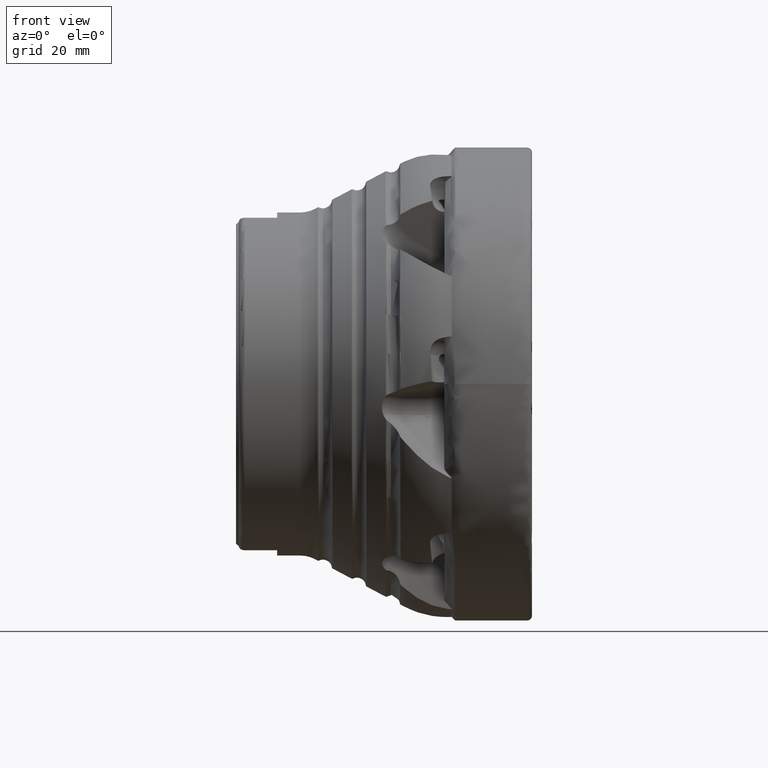
[diagram: clean part render]
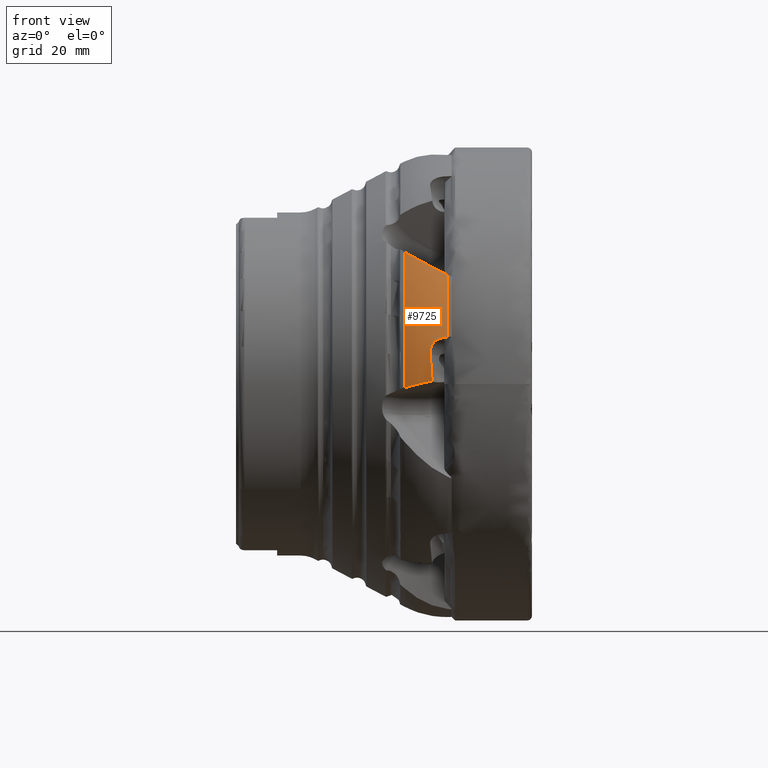
[diagram: same view with one face highlighted and labeled with its STEP entity id]
A machine part, front view. The second image highlights one B-rep face of the part: STEP entity #9725.
In plain terms, the highlighted toroidal blend (fillet) surface has major radius 24.3931 mm and minor (blend) radius 15 mm.
Its self-contained STEP definition (entity closure, byte-faithful):
#104 = CARTESIAN_POINT ( 'NONE',  ( -16.37597930050596100, -38.79018289166661800, 5.288951987856950000 ) ) ;
#184 = EDGE_CURVE ( 'NONE', #18783, #20500, #12116, .T. ) ;
#399 = EDGE_CURVE ( 'NONE', #3662, #20256, #23429, .T. ) ;
#795 = CARTESIAN_POINT ( 'NONE',  ( -16.77943254111280800, -33.47911252088244500, 20.14742397422114500 ) ) ;
#835 = CARTESIAN_POINT ( 'NONE',  ( -13.73284837887350200, -38.59342469146921700, 7.912046819692144500 ) ) ;
#1785 = ORIENTED_EDGE ( 'NONE', *, *, #20787, .F. ) ;
#1813 = FACE_OUTER_BOUND ( 'NONE', #8798, .T. ) ;
#2684 = CARTESIAN_POINT ( 'NONE',  ( -13.42999999998234100, -34.78281372734087300, 18.48801639465638400 ) ) ;
#2694 = ORIENTED_EDGE ( 'NONE', *, *, #8249, .F. ) ;
#2726 = CARTESIAN_POINT ( 'NONE',  ( -16.37597930050596100, -38.79018289166661800, 5.288951987856950000 ) ) ;
#2731 = CARTESIAN_POINT ( 'NONE',  ( -14.03513098841021800, -38.59909842638045100, 7.863855317476371500 ) ) ;
#3276 = DIRECTION ( 'NONE',  ( 1.000000000000000000, -0.0000000000000000000, -0.0000000000000000000 ) ) ;
#3307 = VERTEX_POINT ( 'NONE', #15388 ) ;
#3490 = CARTESIAN_POINT ( 'NONE',  ( -16.19249265984297300, -39.15728566566332300, 2.118347135465126700 ) ) ;
#3662 = VERTEX_POINT ( 'NONE', #5220 ) ;
#3929 = CARTESIAN_POINT ( 'NONE',  ( -15.42731251757508400, -38.59703461811466200, 7.366070526929217300 ) ) ;
#4055 = CARTESIAN_POINT ( 'NONE',  ( -16.86014728812010000, -39.07414596730583900, 0.3575858331617023400 ) ) ;
#4124 = CARTESIAN_POINT ( 'NONE',  ( -16.04868169841183300, -39.20160850595567600, 0.5249181078249819400 ) ) ;
#4600 = CARTESIAN_POINT ( 'NONE',  ( -19.66445720211093800, -31.35542798574010700, 21.75688630742894600 ) ) ;
#4794 = DIRECTION ( 'NONE',  ( 0.0000000000000000000, 0.0000000000000000000, -1.000000000000000000 ) ) ;
#4889 = DIRECTION ( 'NONE',  ( 1.000000000000000000, -0.0000000000000000000, -0.0000000000000000000 ) ) ;
#5156 = CARTESIAN_POINT ( 'NONE',  ( -13.43000000000000000, 0.0000000000000000000, 0.0000000000000000000 ) ) ;
#5220 = CARTESIAN_POINT ( 'NONE',  ( -20.71060675804169900, -30.31023296145828600, 22.32422061106529700 ) ) ;
#5457 = AXIS2_PLACEMENT_3D ( 'NONE', #24330, #3276, #10987 ) ;
#5509 = CARTESIAN_POINT ( 'NONE',  ( -20.71060675804169900, -37.63893244149923600, -0.6259494657251196700 ) ) ;
#5846 = CARTESIAN_POINT ( 'NONE',  ( -15.93773476820731500, -38.62474300011481900, 6.823823603853817600 ) ) ;
#6555 = CARTESIAN_POINT ( 'NONE',  ( -13.43000000000000100, -38.57914422133319500, 7.956161898149958700 ) ) ;
#6592 = EDGE_CURVE ( 'NONE', #3307, #17765, #6817, .T. ) ;
#6817 = B_SPLINE_CURVE_WITH_KNOTS ( 'NONE', 3,
 ( #14880, #20575, #13371, #3929, #19049, #5846, #9555, #17222, #19154, #22883, #20995, #7674, #11481, #104 ),
 .UNSPECIFIED., .F., .F.,
 ( 4, 2, 2, 2, 2, 2, 4 ),
 ( 0.0003456946818717747200, 0.001233063345461003100, 0.002120432009050231700, 0.002564116340844846200, 0.003007800672639461200, 0.003451485004434075300, 0.003895169336228690300 ),
 .UNSPECIFIED. ) ;
#7674 = CARTESIAN_POINT ( 'NONE',  ( -16.38063185222036500, -38.74852623846634000, 5.582034543780337400 ) ) ;
#8105 = CARTESIAN_POINT ( 'NONE',  ( -19.22949444710015100, -38.35379898792822900, -0.2104662784694212300 ) ) ;
#8169 = CARTESIAN_POINT ( 'NONE',  ( -18.56034374061524500, -32.28885513590097400, 21.13930795215225100 ) ) ;
#8244 = CARTESIAN_POINT ( 'NONE',  ( -20.71060675804169900, -30.31023296145828600, 22.32422061106529700 ) ) ;
#8249 = EDGE_CURVE ( 'NONE', #20500, #3307, #9816, .T. ) ;
#8798 = EDGE_LOOP ( 'NONE', ( #14566, #2694, #15135, #17120, #21870, #15516, #1785 ) ) ;
#8887 = DIRECTION ( 'NONE',  ( 0.0000000000000000000, 0.0000000000000000000, -1.000000000000000000 ) ) ;
#9555 = CARTESIAN_POINT ( 'NONE',  ( -16.02111132676829900, -38.63335912636703300, 6.699211045970764100 ) ) ;
#9725 = ADVANCED_FACE ( 'NONE', ( #1813 ), #17881, .T. ) ;
#9816 = B_SPLINE_CURVE_WITH_KNOTS ( 'NONE', 3,
 ( #6555, #835, #2731, #10020 ),
 .UNSPECIFIED., .F., .F.,
 ( 4, 4 ),
 ( 2.021736733683022900E-007, 0.0009186220929995865600 ),
 .UNSPECIFIED. ) ;
#10007 = CARTESIAN_POINT ( 'NONE',  ( -20.71060675804169900, -37.63893244149923600, -0.6259494657251196700 ) ) ;
#10020 = CARTESIAN_POINT ( 'NONE',  ( -14.33722463107859600, -38.59571666467294200, 7.813929466283240400 ) ) ;
#10232 = CARTESIAN_POINT ( 'NONE',  ( -17.98769911088702100, -32.71784690037552000, 20.81542092399737200 ) ) ;
#10987 = DIRECTION ( 'NONE',  ( 0.0000000000000000000, 0.0000000000000000000, -1.000000000000000000 ) ) ;
#11481 = CARTESIAN_POINT ( 'NONE',  ( -16.38518342453040000, -38.76849905577704900, 5.435544174944087800 ) ) ;
#12116 = CIRCLE ( 'NONE', #16543, 39.39099999999999800 ) ;
#12219 = CARTESIAN_POINT ( 'NONE',  ( -15.82319226672823300, -33.97782441870808900, 19.63611935237458900 ) ) ;
#13371 = CARTESIAN_POINT ( 'NONE',  ( -14.91569986178434200, -38.59127995542758800, 7.662885495066182000 ) ) ;
#14049 = CARTESIAN_POINT ( 'NONE',  ( -14.15014878084373400, -34.63140920410067000, 18.79858082046708700 ) ) ;
#14566 = ORIENTED_EDGE ( 'NONE', *, *, #6592, .F. ) ;
#14880 = CARTESIAN_POINT ( 'NONE',  ( -14.33722463107859600, -38.59571666467294200, 7.813929466283240400 ) ) ;
#15135 = ORIENTED_EDGE ( 'NONE', *, *, #184, .F. ) ;
#15388 = CARTESIAN_POINT ( 'NONE',  ( -14.33722463107859600, -38.59571666467294200, 7.813929466283240400 ) ) ;
#15516 = ORIENTED_EDGE ( 'NONE', *, *, #24584, .F. ) ;
#15657 = CARTESIAN_POINT ( 'NONE',  ( -19.98468851705155200, -38.02759343935825600, -0.4135740358541369300 ) ) ;
#15879 = CARTESIAN_POINT ( 'NONE',  ( -16.14778757402033800, -33.81958347423044800, 19.80749628846284700 ) ) ;
#16543 = AXIS2_PLACEMENT_3D ( 'NONE', #5156, #20308, #8887 ) ;
#16621 = CARTESIAN_POINT ( 'NONE',  ( -16.04868169841183300, -39.20160850595567600, 0.5249181078249819400 ) ) ;
#17120 = ORIENTED_EDGE ( 'NONE', *, *, #24350, .F. ) ;
#17222 = CARTESIAN_POINT ( 'NONE',  ( -16.16291184620125800, -38.65441970090710600, 6.437517166191234700 ) ) ;
#17435 = CARTESIAN_POINT ( 'NONE',  ( -16.04868169841183300, -39.20160850595567600, 0.5249181078249819400 ) ) ;
#17765 = VERTEX_POINT ( 'NONE', #2726 ) ;
#17881 = TOROIDAL_SURFACE ( 'NONE', #5457, 24.39310635530769700, 15.00000000000000400 ) ;
#17883 = CARTESIAN_POINT ( 'NONE',  ( -17.08678582245598000, -33.29689690296677200, 20.31609550464316900 ) ) ;
#18549 = B_SPLINE_CURVE_WITH_KNOTS ( 'NONE', 3,
 ( #17435, #4055, #23011, #8105, #15657, #10007 ),
 .UNSPECIFIED., .F., .F.,
 ( 4, 2, 4 ),
 ( 0.002660664059138240000, 0.005175454664293918000, 0.007690245269449594600 ),
 .UNSPECIFIED. ) ;
#18783 = VERTEX_POINT ( 'NONE', #20677 ) ;
#19049 = CARTESIAN_POINT ( 'NONE',  ( -15.65878898204373800, -38.60416296204018500, 7.168265182385233900 ) ) ;
#19102 = B_SPLINE_CURVE_WITH_KNOTS ( 'NONE', 3,
 ( #20400, #22453, #3490, #16621 ),
 .UNSPECIFIED., .F., .F.,
 ( 4, 4 ),
 ( 0.0005743471196245647100, 0.005367124129456444700 ),
 .UNSPECIFIED. ) ;
#19154 = CARTESIAN_POINT ( 'NONE',  ( -16.22085932172492300, -38.66672483037080400, 6.301899578269824600 ) ) ;
#19794 = CARTESIAN_POINT ( 'NONE',  ( -20.71060675804169900, 0.0000000000000000000, 0.0000000000000000000 ) ) ;
#20046 = AXIS2_PLACEMENT_3D ( 'NONE', #19794, #4889, #4794 ) ;
#20256 = VERTEX_POINT ( 'NONE', #5509 ) ;
#20308 = DIRECTION ( 'NONE',  ( 1.000000000000000000, -0.0000000000000000000, -0.0000000000000000000 ) ) ;
#20400 = CARTESIAN_POINT ( 'NONE',  ( -16.37597930050596100, -38.79018289166661800, 5.288951987856950000 ) ) ;
#20500 = VERTEX_POINT ( 'NONE', #23637 ) ;
#20575 = CARTESIAN_POINT ( 'NONE',  ( -14.62914718913909900, -38.59244876231101500, 7.765684551014908600 ) ) ;
#20677 = CARTESIAN_POINT ( 'NONE',  ( -13.42999999998234100, -34.78281372734087300, 18.48801639465638400 ) ) ;
#20787 = EDGE_CURVE ( 'NONE', #17765, #24627, #19102, .T. ) ;
#20995 = CARTESIAN_POINT ( 'NONE',  ( -16.34392378035373000, -38.71196462258170400, 5.874804138585312300 ) ) ;
#21870 = ORIENTED_EDGE ( 'NONE', *, *, #399, .T. ) ;
#22453 = CARTESIAN_POINT ( 'NONE',  ( -16.27682184553292900, -39.02378621721479800, 3.709691631086846200 ) ) ;
#22883 = CARTESIAN_POINT ( 'NONE',  ( -16.31131929967569900, -38.69539042203626900, 6.021351427232133300 ) ) ;
#23011 = CARTESIAN_POINT ( 'NONE',  ( -17.65977729811028500, -38.87964082811183200, 0.1769678099608440200 ) ) ;
#23429 = CIRCLE ( 'NONE', #20046, 37.64413696805100800 ) ;
#23467 = CARTESIAN_POINT ( 'NONE',  ( -20.19582019766369300, -30.85089142589419400, 22.05062897141649700 ) ) ;
#23552 = CARTESIAN_POINT ( 'NONE',  ( -14.83406174202815500, -34.40555351316336900, 19.12934241553431400 ) ) ;
#23637 = CARTESIAN_POINT ( 'NONE',  ( -13.43000000000000100, -38.57914422133319500, 7.956161898149958700 ) ) ;
#24330 = CARTESIAN_POINT ( 'NONE',  ( -13.68136869832713900, 0.0000000000000000000, 0.0000000000000000000 ) ) ;
#24350 = EDGE_CURVE ( 'NONE', #3662, #18783, #24435, .T. ) ;
#24435 = B_SPLINE_CURVE_WITH_KNOTS ( 'NONE', 3,
 ( #8244, #23467, #4600, #8169, #10232, #17883, #795, #15879, #12219, #23552, #14049, #2684 ),
 .UNSPECIFIED., .F., .F.,
 ( 4, 2, 2, 2, 2, 4 ),
 ( 3.050990413372019800E-007, 0.002356208442573145500, 0.004712111786104954300, 0.005890063457870867200, 0.007068015129636781800, 0.009423918473168599700 ),
 .UNSPECIFIED. ) ;
#24584 = EDGE_CURVE ( 'NONE', #24627, #20256, #18549, .T. ) ;
#24627 = VERTEX_POINT ( 'NONE', #4124 ) ;